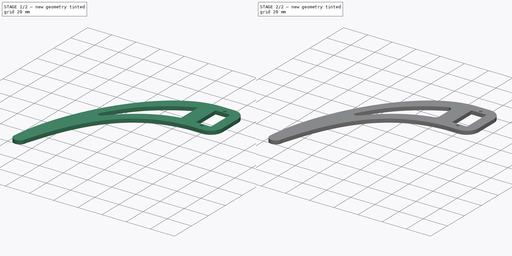
[diagram: build sequence overview — one tinted view per stage of 2, left to right]
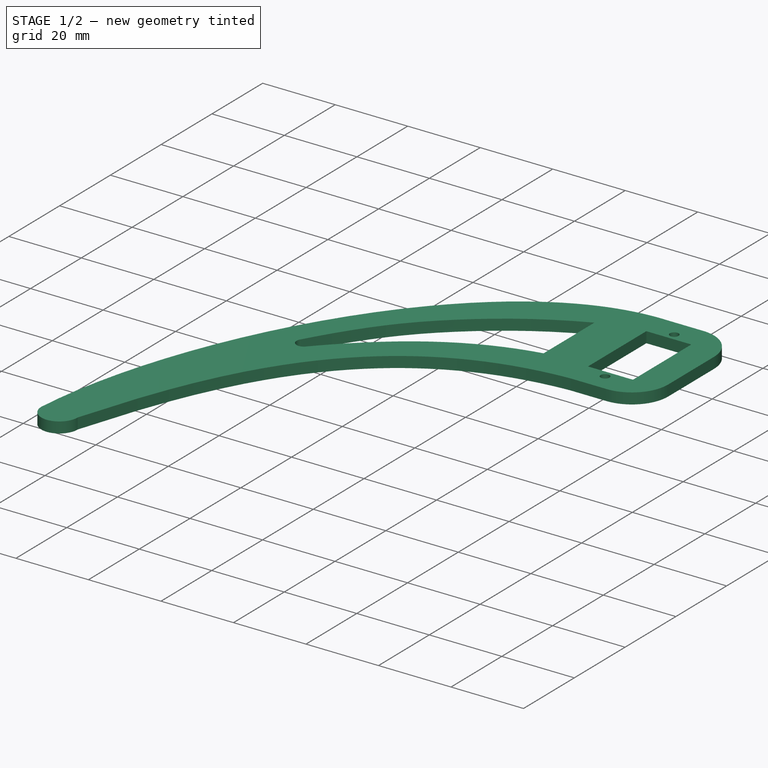
[diagram: stage 1 of 2 — iso view after this stage's code; geometry added in this stage tinted green]
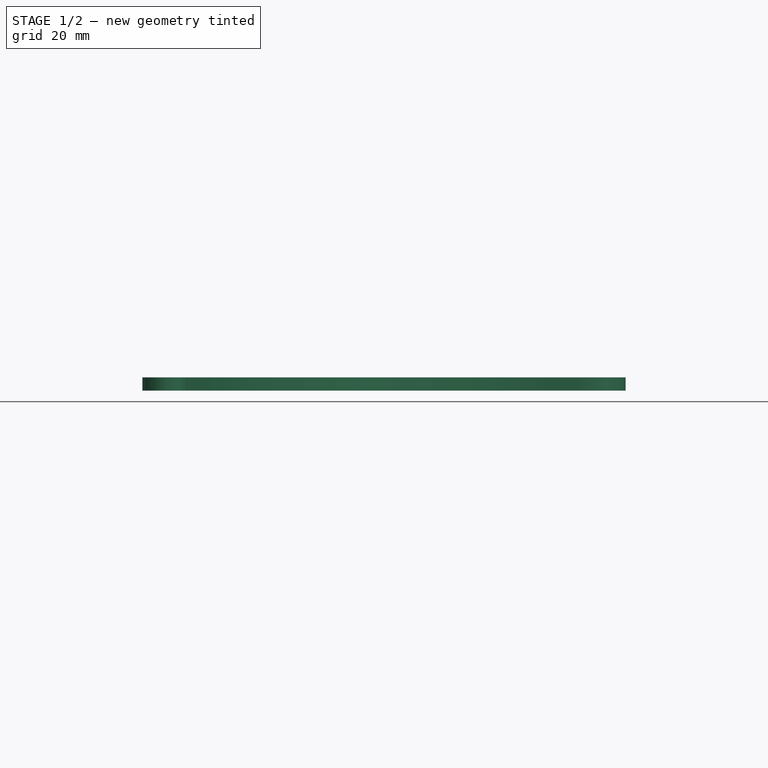
[diagram: stage 1 of 2 — front view after this stage's code; geometry added in this stage tinted green]
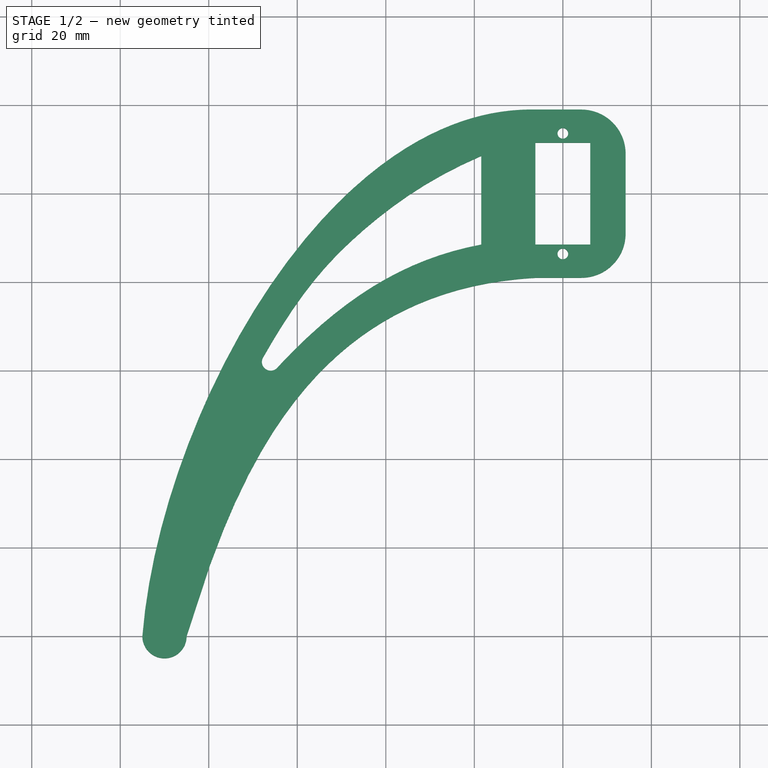
[diagram: stage 1 of 2 — top view after this stage's code; geometry added in this stage tinted green]
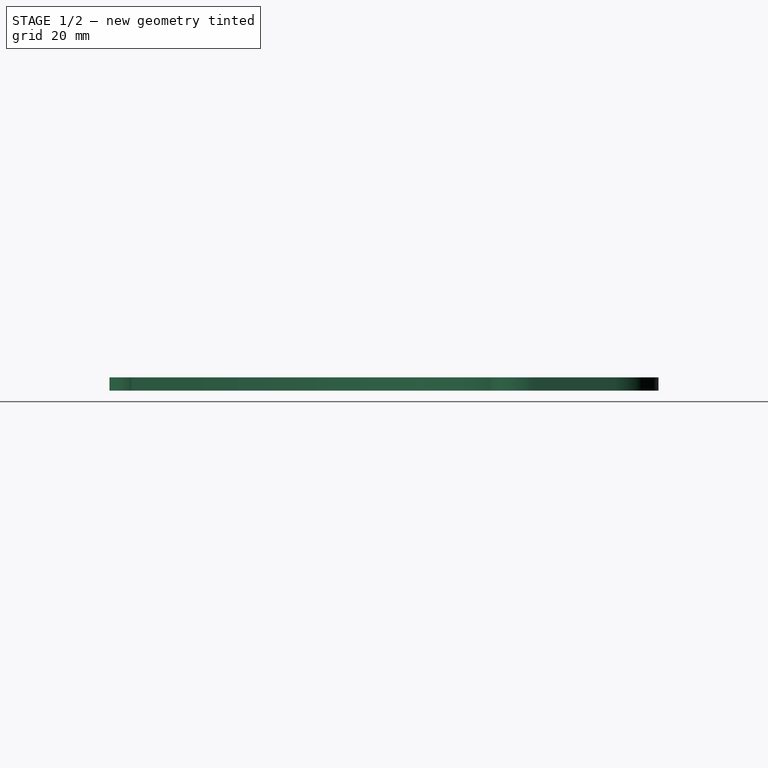
[diagram: stage 1 of 2 — right view after this stage's code; geometry added in this stage tinted green]
FCSTD DOCUMENT  (FreeCAD 0.18R16117 (Git))
Label: Kaki
License: All rights reserved
LicenseURL: http://en.wikipedia.org/wiki/All_rights_reserved
objects: PartDesign::Fillet×2, Sketcher::SketchObject×1, PartDesign::Pad×1, PartDesign::Body×1
note: 6 computed .brp shape members not serialized (recipe doc carries the construction recipe); baked Part::Feature solids carry a one-line shape summary decoded from their .brp

FEATURE [Sketcher::SketchObject] Sketch
  MapMode = 5
  Support = -> [XY_Plane]
  sketch-geometry (32):
    g0: Circle CenterX=0 CenterY=13.62 CenterZ=0 NormalX=0 NormalY=0 NormalZ=1 AngleXU=0 Radius=1.2
    g1: Circle CenterX=0 CenterY=-13.62 CenterZ=0 NormalX=0 NormalY=0 NormalZ=1 AngleXU=0 Radius=1.2
    g2: LineSegment StartX=-6.2 StartY=11.5 StartZ=0 EndX=6.2 EndY=11.5 EndZ=0
    g3: LineSegment StartX=6.2 StartY=11.5 StartZ=0 EndX=6.2 EndY=-11.5 EndZ=0
    g4: LineSegment StartX=6.2 StartY=-11.5 StartZ=0 EndX=-6.2 EndY=-11.5 EndZ=0
    g5: LineSegment StartX=-6.2 StartY=-11.5 StartZ=0 EndX=-6.2 EndY=11.5 EndZ=0
    g6: LineSegment StartX=-5.81575 StartY=19 StartZ=0 EndX=14.1842 EndY=19 EndZ=0
    g7: LineSegment StartX=14.1842 StartY=19 StartZ=0 EndX=14.1842 EndY=-19 EndZ=0
    g8: LineSegment StartX=14.1842 StartY=-19 StartZ=0 EndX=-5.81575 EndY=-19 EndZ=0
    g9: ArcOfCircle CenterX=-90 CenterY=-100 CenterZ=0 NormalX=0 NormalY=0 NormalZ=1 AngleXU=0 Radius=5 StartAngle=3.14159 EndAngle=6.28319
    g10: BSplineCurve PolesCount=4 KnotsCount=2 Degree=3 IsPeriodic=0
    g11: GeomPoint [constr] X=-75 Y=-100 Z=0
    g12: BSplineCurve PolesCount=4 KnotsCount=2 Degree=3 IsPeriodic=0
    g13: GeomPoint [constr] X=-95 Y=-100 Z=0
    g14: GeomPoint [constr] X=-5.81575 Y=19 Z=0
    g15: LineSegment StartX=-18.4379 StartY=8.51187 StartZ=0 EndX=-18.4379 EndY=-11.5 EndZ=0
    g16: ArcOfCircle CenterX=-66 CenterY=-38 CenterZ=0 NormalX=0 NormalY=0 NormalZ=1 AngleXU=0 Radius=2 StartAngle=2.50489 EndAngle=5.64648
    g17-g20: Circle [constr] x4 (B-spline internal-alignment scaffolding for g21; pole/knot coordinates omitted)
    g21: BSplineCurve PolesCount=4 KnotsCount=2 Degree=3 IsPeriodic=0
    g22: GeomPoint [constr] X=-18.4379 Y=-11.5 Z=0
    g23: GeomPoint [constr] X=-64.3919 Y=-39.1891 Z=0
    g24-g28: Circle [constr] x5 (B-spline internal-alignment scaffolding for g29; pole/knot coordinates omitted)
    g29: BSplineCurve PolesCount=5 KnotsCount=3 Degree=3 IsPeriodic=0
    g30: GeomPoint [constr] X=-18.4379 Y=8.51187 Z=0
    g31: GeomPoint [constr] X=-67.6081 Y=-36.8109 Z=0
  constraints (56):
    c: Coincident(g2,g3)
    c: Coincident(g3,g4)
    c: Coincident(g4,g5)
    c: Coincident(g5,g2)
    c: Horizontal(g4)
    c: Vertical(g3)
    c: Equal(g0,g1)
    c: Diameter(g0) = 2.4
    c: DistanceY(g3,g3) = 23
    c: DistanceX(g4,g4) = 12.4
    c: Symmetric(g2,g2,g-2)
    c: Symmetric(g4,g2,g-1)
    c: Coincident(g6,g7)
    c: Coincident(g7,g8)
    c: Horizontal(g8)
    c: Vertical(g7)
    c: Symmetric(g8,g6,g-1)
    c: DistanceY(g7,g7) = 38
    c: DistanceX(g8,g8) = 20
    c: Diameter(g9) = 10
    c: DistanceX(g9,g-1) = 90
    c: DistanceY(g9,g-1) = 100
    c: Horizontal(g9,g9)
    c: Angle(g9) = 3.14159
    c: Coincident(g10,g9)
    c: Coincident(g10,g8)
    c: Coincident(g12,g9)
    c: Coincident(g12,g6)
    c: InternalAlignment(g13,g12)
    c: InternalAlignment(g14,g12)
    c: Horizontal(g6)
    c: Symmetric(g0,g1,g-1)
    c: DistanceY(g-1,g0) = 13.62
    c: PointOnObject(g1,g-2)
    c: Vertical(g15)
    c: Horizontal(g15,g4)
    c: Coincident(g21,g15)
    c: Radius(g17) = 3
    c: Equal(g17,g18)
    c: Equal(g17,g19)
    c: Equal(g17,g20)
    c: Coincident(g21,g16)
    c: InternalAlignment(g17-g20 -> g21) x4
    c: InternalAlignment(g22,g21)
    c: InternalAlignment(g23,g21)
    c: Coincident(g29,g15)
    c: Radius(g24) = 3
    c: Equal(g24, g25-g28) x4
    c: Coincident(g29,g16)
    c: InternalAlignment(g24-g28 -> g29) x5
    c: InternalAlignment(g30,g29)
    c: InternalAlignment(g31,g29)
    c: DistanceX(g16,g-1) = 66
    c: DistanceY(g16,g-1) = 38
    c: Angle(g16) = 3.14159
    c: Radius(g16) = 2
FEATURE [PartDesign::Pad] Pad
  Length = 3
  Length2 = 100
  Profile = -> Sketch
  Type = 0
FEATURE [PartDesign::Fillet] Fillet
  Base = -> Pad [Edge8,Edge5]
  BaseFeature = -> Pad
  Radius = 10
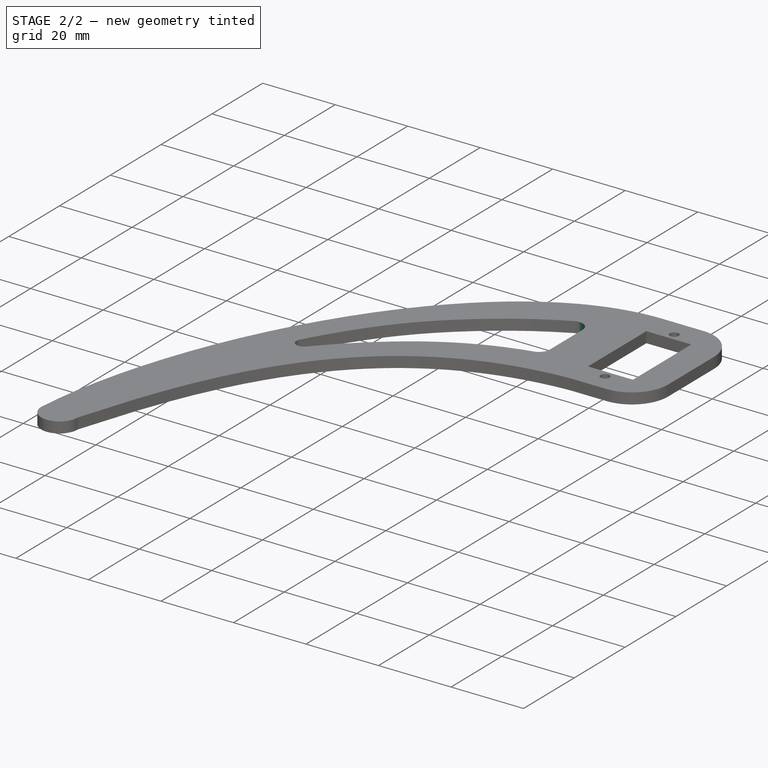
[diagram: stage 2 of 2 — iso view after this stage's code; geometry added in this stage tinted green]
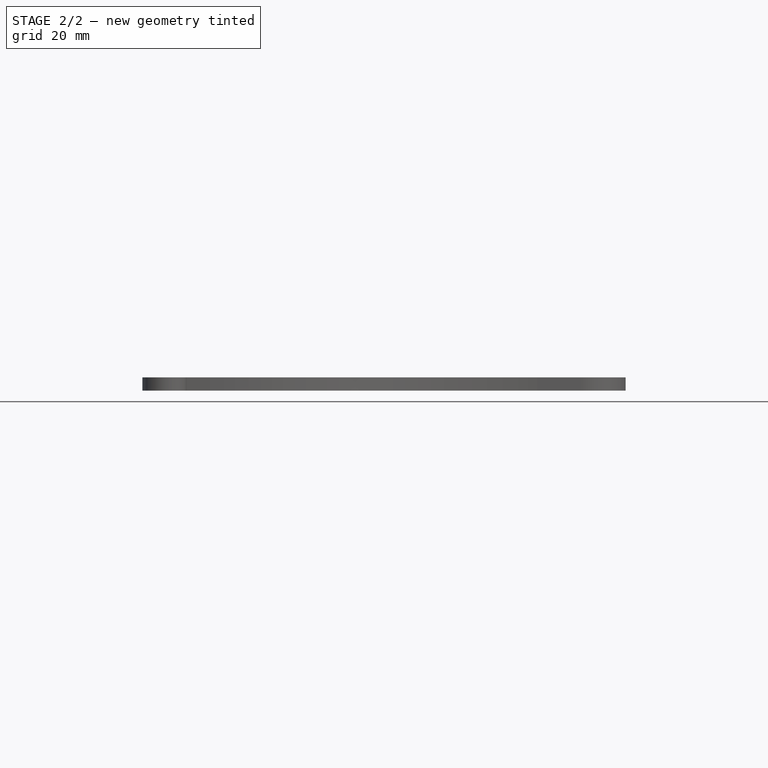
[diagram: stage 2 of 2 — front view after this stage's code; geometry added in this stage tinted green]
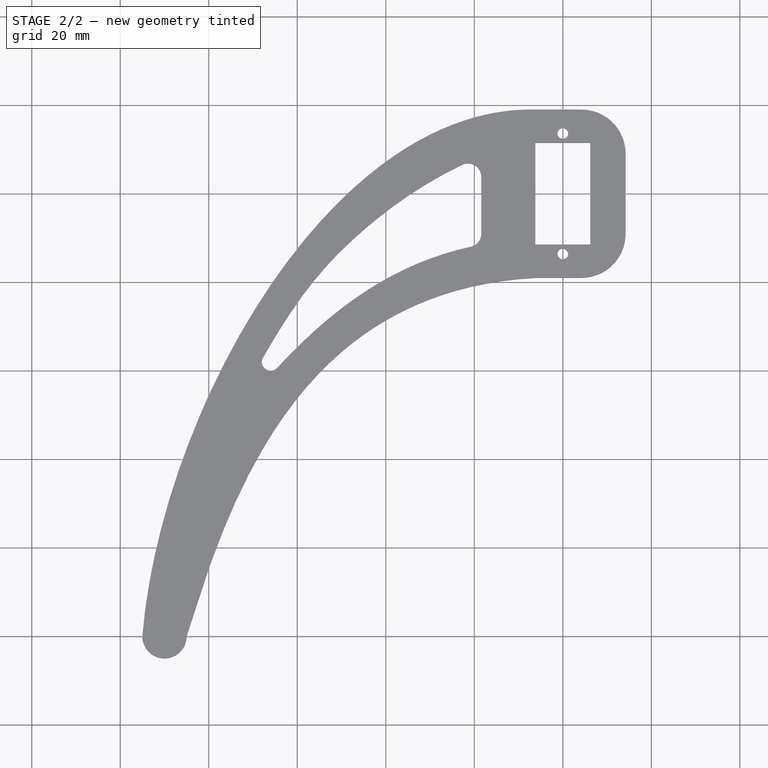
[diagram: stage 2 of 2 — top view after this stage's code; geometry added in this stage tinted green]
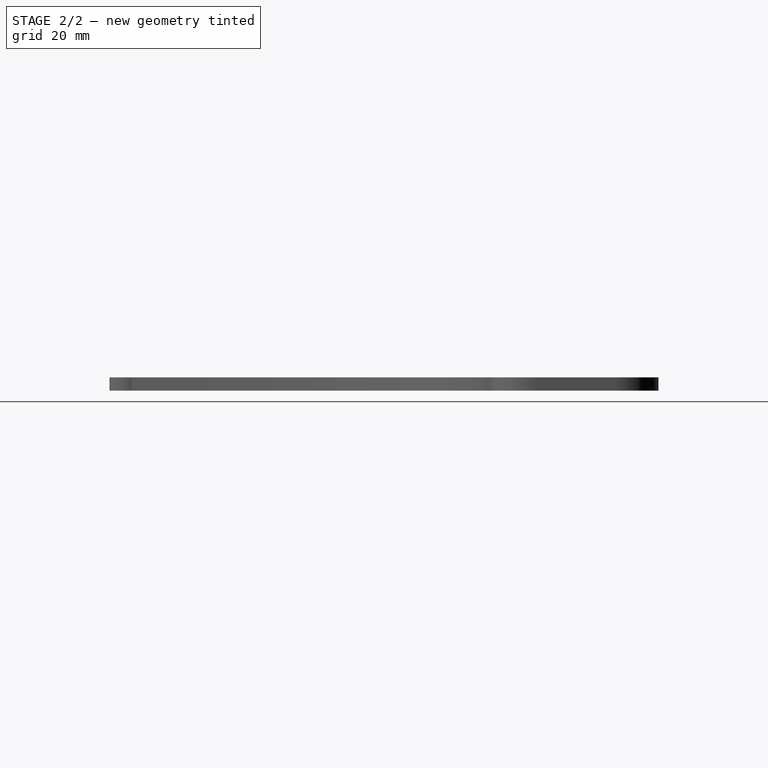
[diagram: stage 2 of 2 — right view after this stage's code; geometry added in this stage tinted green]
FEATURE [PartDesign::Fillet] Fillet001
  Base = -> Fillet [Edge45,Edge48]
  BaseFeature = -> Fillet
  Radius = 3
FEATURE [PartDesign::Body] Body
  Group = -> [Sketch,Pad,Fillet,Fillet001]
  Origin = -> Origin
  Tip = -> Fillet001
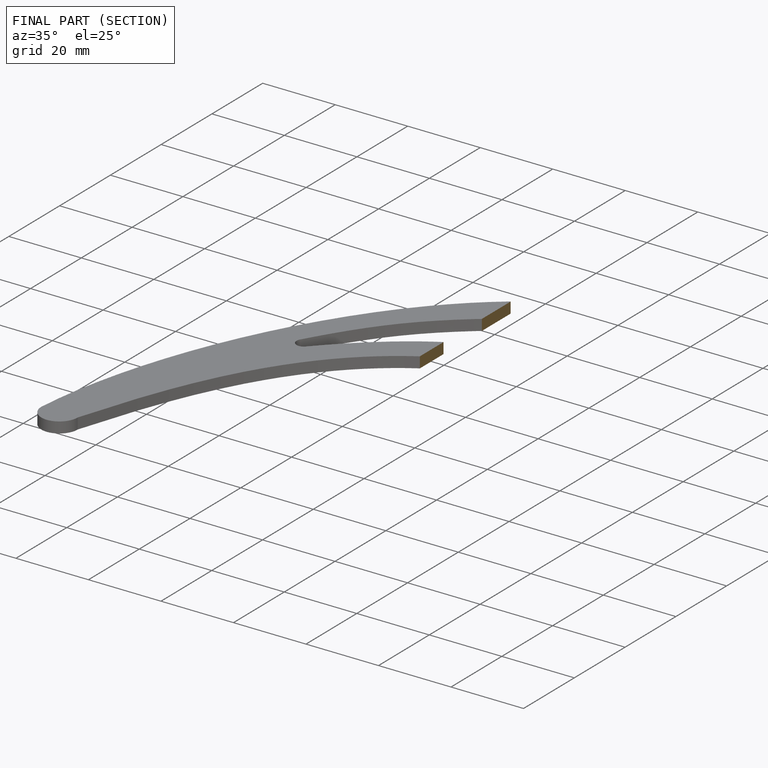
[diagram: finished part — half-section view (interior)]
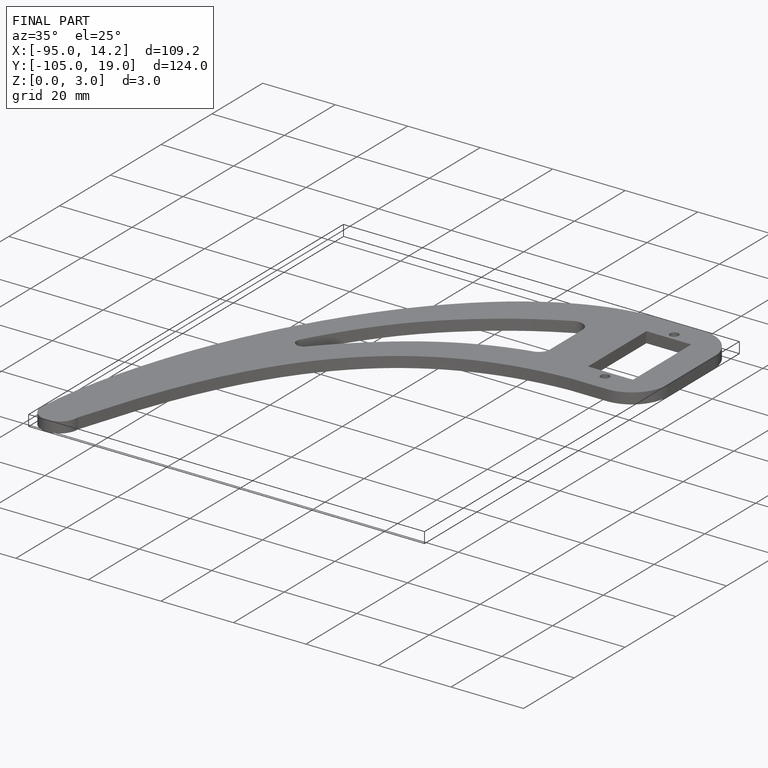
[diagram: finished part — iso view with bounding-box wireframe]
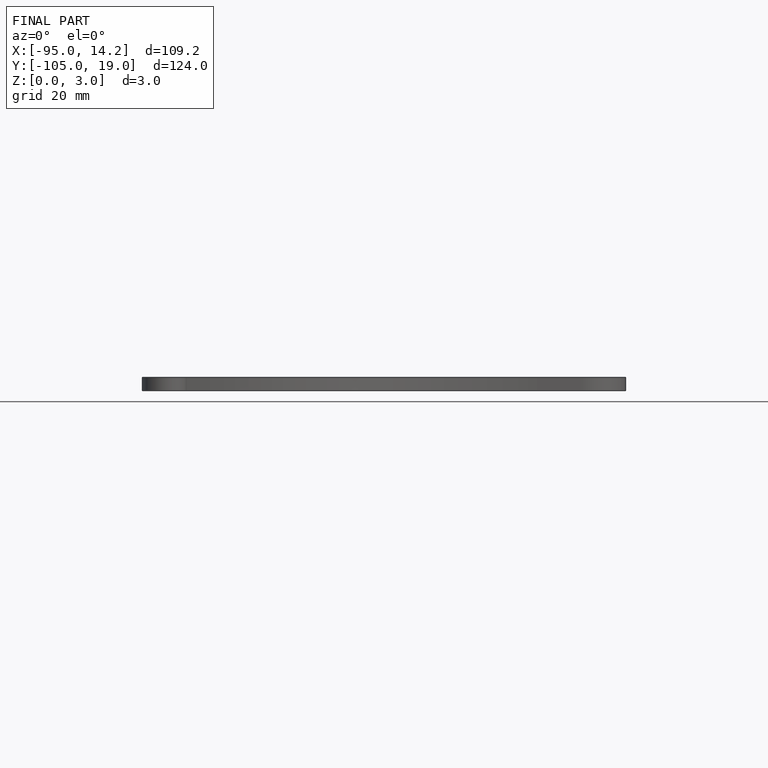
[diagram: finished part — front view with bounding-box wireframe]
